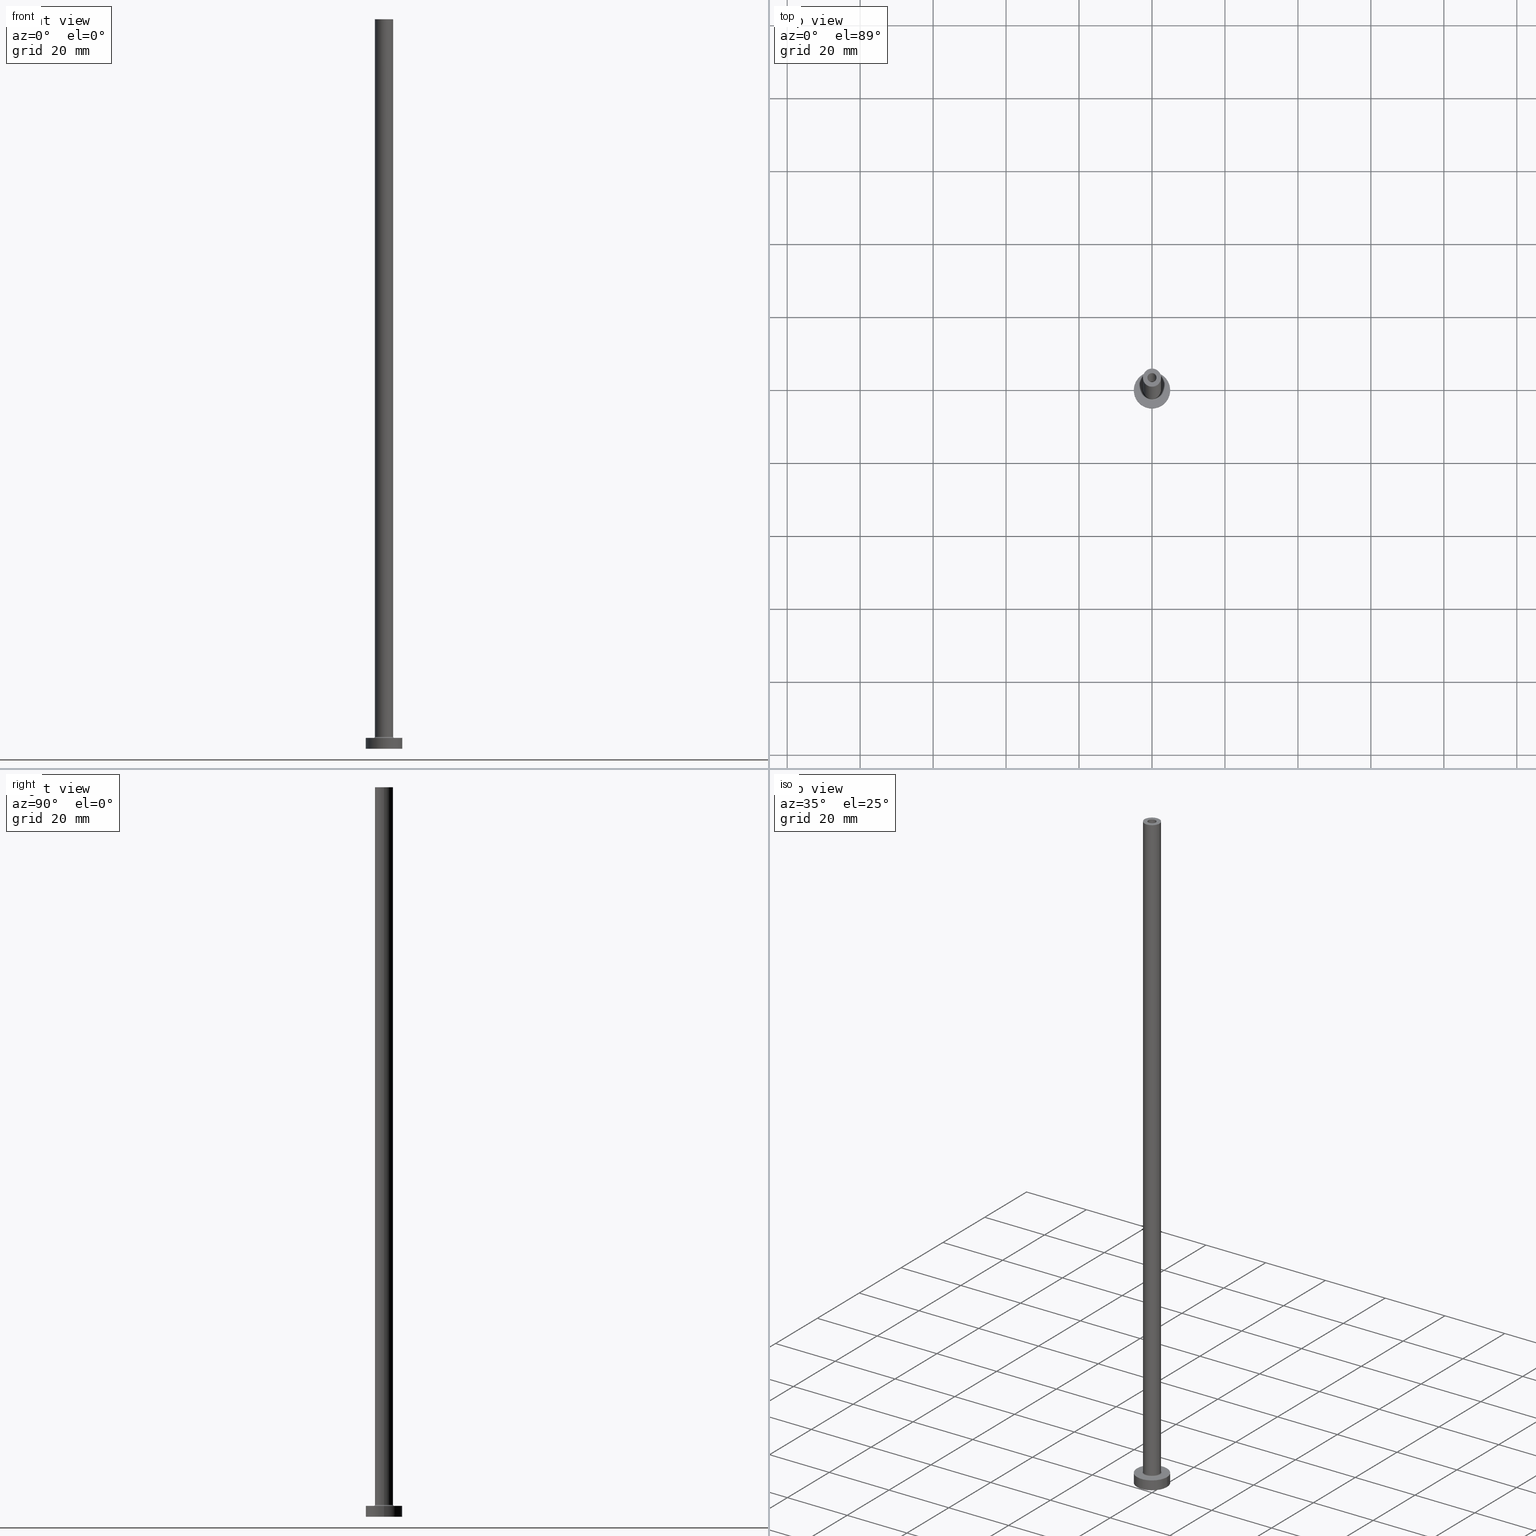
[diagram: canonical four-view strip — front | top / right | iso, engineering-drawing reading convention]
A machine part, canonical four-view strip (front | top / right | iso — engineering-drawing reading convention). The complete STEP part file that produces these views, byte-faithful:
ISO-10303-21;
HEADER;
FILE_DESCRIPTION (( 'STEP AP203' ),
    '1' );
FILE_NAME ('331a.STEP',
    '2023-02-13T18:05:34',
    ( '' ),
    ( '' ),
    'SwSTEP 2.0',
    'SolidWorks 2019',
    '' );
FILE_SCHEMA (( 'CONFIG_CONTROL_DESIGN' ));
ENDSEC;

DATA;
#1 = AXIS2_PLACEMENT_3D ( 'NONE', #177, #43, #408 ) ;
#2 = DIRECTION ( 'NONE',  ( -1.000000000000000000, 1.224646799147353207E-16, 0.000000000000000000 ) ) ;
#3 = AXIS2_PLACEMENT_3D ( 'NONE', #390, #38, #357 ) ;
#4 = DIRECTION ( 'NONE',  ( -1.000000000000000000, 0.000000000000000000, 0.000000000000000000 ) ) ;
#5 = ORIENTED_EDGE ( 'NONE', *, *, #136, .F. ) ;
#6 = ORIENTED_EDGE ( 'NONE', *, *, #55, .F. ) ;
#7 = ADVANCED_FACE ( 'NONE', ( #234, #165 ), #94, .F. ) ;
#8 = LOCAL_TIME ( 19, 5, 34.00000000000000000, #237 ) ;
#9 = PRODUCT ( '331a', '331a', '', ( #304 ) ) ;
#10 = DIRECTION ( 'NONE',  ( 0.000000000000000000, 0.000000000000000000, 1.000000000000000000 ) ) ;
#11 = CYLINDRICAL_SURFACE ( 'NONE', #228, 1.399999999999999911 ) ;
#12 = DIRECTION ( 'NONE',  ( 1.000000000000000000, 0.000000000000000000, 0.000000000000000000 ) ) ;
#13 = ORIENTED_EDGE ( 'NONE', *, *, #380, .F. ) ;
#14 = AXIS2_PLACEMENT_3D ( 'NONE', #178, #324, #425 ) ;
#15 = CIRCLE ( 'NONE', #370, 2.799999999999999822 ) ;
#16 = VERTEX_POINT ( 'NONE', #195 ) ;
#17 = APPROVAL_ROLE ( '' ) ;
#18 = CARTESIAN_POINT ( 'NONE',  ( -2.500000000000000000, 0.000000000000000000, 3.299999999999997158 ) ) ;
#19 = EDGE_LOOP ( 'NONE', ( #354, #179 ) ) ;
#20 = EDGE_LOOP ( 'NONE', ( #404, #34 ) ) ;
#21 = LINE ( 'NONE', #453, #189 ) ;
#22 = AXIS2_PLACEMENT_3D ( 'NONE', #89, #24, #54 ) ;
#23 = VERTEX_POINT ( 'NONE', #448 ) ;
#24 = DIRECTION ( 'NONE',  ( 0.000000000000000000, 0.000000000000000000, 1.000000000000000000 ) ) ;
#25 = ORIENTED_EDGE ( 'NONE', *, *, #322, .T. ) ;
#26 = EDGE_CURVE ( 'NONE', #416, #356, #153, .T. ) ;
#27 = VECTOR ( 'NONE', #248, 1000.000000000000000 ) ;
#28 = FACE_BOUND ( 'NONE', #19, .T. ) ;
#29 = DIRECTION ( 'NONE',  ( -0.000000000000000000, -0.000000000000000000, -1.000000000000000000 ) ) ;
#30 = AXIS2_PLACEMENT_3D ( 'NONE', #396, #95, #355 ) ;
#31 = FACE_OUTER_BOUND ( 'NONE', #157, .T. ) ;
#32 = CARTESIAN_POINT ( 'NONE',  ( 2.500000000000000000, 3.061616997868383141E-16, 3.299999999999997158 ) ) ;
#33 = DIRECTION ( 'NONE',  ( 0.000000000000000000, 0.000000000000000000, -1.000000000000000000 ) ) ;
#34 = ORIENTED_EDGE ( 'NONE', *, *, #308, .T. ) ;
#35 = ORGANIZATION ( 'NEUR�EN�', 'NEUR�EN�', '' ) ;
#36 = FACE_BOUND ( 'NONE', #20, .T. ) ;
#37 = EDGE_CURVE ( 'NONE', #60, #173, #417, .T. ) ;
#38 = DIRECTION ( 'NONE',  ( -0.000000000000000000, -0.000000000000000000, -1.000000000000000000 ) ) ;
#39 = EDGE_CURVE ( 'NONE', #46, #414, #21, .T. ) ;
#40 = CARTESIAN_POINT ( 'NONE',  ( 0.000000000000000000, 0.000000000000000000, 3.000000000000000000 ) ) ;
#41 = CARTESIAN_POINT ( 'NONE',  ( -1.250000000000000000, 0.000000000000000000, 200.0000000000000000 ) ) ;
#42 = VECTOR ( 'NONE', #291, 1000.000000000000000 ) ;
#43 = DIRECTION ( 'NONE',  ( 0.000000000000000000, -1.000000000000000000, 0.000000000000000000 ) ) ;
#44 = CC_DESIGN_DATE_AND_TIME_ASSIGNMENT ( #59, #48, ( #365 ) ) ;
#45 = PERSON_AND_ORGANIZATION ( #326, #35 ) ;
#46 = VERTEX_POINT ( 'NONE', #129 ) ;
#47 = EDGE_CURVE ( 'NONE', #411, #254, #384, .T. ) ;
#48 = DATE_TIME_ROLE ( 'creation_date' ) ;
#49 = VERTEX_POINT ( 'NONE', #461 ) ;
#50 = EDGE_CURVE ( 'NONE', #23, #254, #429, .T. ) ;
#51 = PERSON_AND_ORGANIZATION_ROLE ( 'creator' ) ;
#52 = CARTESIAN_POINT ( 'NONE',  ( 0.000000000000000000, 0.000000000000000000, 0.000000000000000000 ) ) ;
#53 = CIRCLE ( 'NONE', #92, 0.2999999999999999334 ) ;
#54 = DIRECTION ( 'NONE',  ( 1.000000000000000000, 0.000000000000000000, 0.000000000000000000 ) ) ;
#55 = EDGE_CURVE ( 'NONE', #298, #160, #245, .T. ) ;
#56 = CARTESIAN_POINT ( 'NONE',  ( 0.000000000000000000, 0.000000000000000000, 200.0000000000000000 ) ) ;
#57 = ORIENTED_EDGE ( 'NONE', *, *, #431, .T. ) ;
#58 = EDGE_CURVE ( 'NONE', #254, #411, #71, .T. ) ;
#59 = DATE_AND_TIME ( #203, #8 ) ;
#60 = VERTEX_POINT ( 'NONE', #81 ) ;
#61 = DIRECTION ( 'NONE',  ( -0.000000000000000000, -0.000000000000000000, -1.000000000000000000 ) ) ;
#62 = EDGE_CURVE ( 'NONE', #46, #298, #430, .T. ) ;
#63 = AXIS2_PLACEMENT_3D ( 'NONE', #445, #163, #313 ) ;
#64 = CARTESIAN_POINT ( 'NONE',  ( 0.000000000000000000, 0.000000000000000000, 3.000000000000000000 ) ) ;
#65 = DIRECTION ( 'NONE',  ( 1.000000000000000000, 0.000000000000000000, 0.000000000000000000 ) ) ;
#66 = DIRECTION ( 'NONE',  ( 0.000000000000000000, 0.000000000000000000, 1.000000000000000000 ) ) ;
#67 = PRODUCT_RELATED_PRODUCT_CATEGORY ( 'detail', '', ( #9 ) ) ;
#68 = EDGE_LOOP ( 'NONE', ( #332, #337, #86, #131 ) ) ;
#69 = ADVANCED_FACE ( 'NONE', ( #152 ), #180, .F. ) ;
#70 = CARTESIAN_POINT ( 'NONE',  ( 0.000000000000000000, 0.000000000000000000, 165.0000000000000000 ) ) ;
#71 = CIRCLE ( 'NONE', #455, 1.250000000000000000 ) ;
#72 = APPROVAL_DATE_TIME ( #255, #128 ) ;
#73 = ORIENTED_EDGE ( 'NONE', *, *, #459, .F. ) ;
#74 = AXIS2_PLACEMENT_3D ( 'NONE', #359, #244, #282 ) ;
#75 = CARTESIAN_POINT ( 'NONE',  ( 5.000000000000000000, 6.123233995736766282E-16, 0.000000000000000000 ) ) ;
#76 =( NAMED_UNIT ( * ) PLANE_ANGLE_UNIT ( ) SI_UNIT ( $, .RADIAN. ) );
#77 = ORIENTED_EDGE ( 'NONE', *, *, #322, .F. ) ;
#78 = LINE ( 'NONE', #80, #42 ) ;
#79 = PERSON_AND_ORGANIZATION_ROLE ( 'classification_officer' ) ;
#80 = CARTESIAN_POINT ( 'NONE',  ( -5.000000000000000000, 0.000000000000000000, 3.000000000000000000 ) ) ;
#81 = CARTESIAN_POINT ( 'NONE',  ( -5.000000000000000000, 0.000000000000000000, 0.000000000000000000 ) ) ;
#82 = EDGE_LOOP ( 'NONE', ( #238, #73, #109, #127 ) ) ;
#83 = APPROVAL_PERSON_ORGANIZATION ( #297, #128, #218 ) ;
#84 = DIRECTION ( 'NONE',  ( 1.000000000000000000, 0.000000000000000000, 0.000000000000000000 ) ) ;
#85 = EDGE_CURVE ( 'NONE', #145, #215, #348, .T. ) ;
#86 = ORIENTED_EDGE ( 'NONE', *, *, #288, .T. ) ;
#87 = DIRECTION ( 'NONE',  ( 1.000000000000000000, 0.000000000000000000, 0.000000000000000000 ) ) ;
#88 = EDGE_LOOP ( 'NONE', ( #190, #328 ) ) ;
#89 = CARTESIAN_POINT ( 'NONE',  ( 0.000000000000000000, 0.000000000000000000, 200.0000000000000000 ) ) ;
#90 = CARTESIAN_POINT ( 'NONE',  ( 0.000000000000000000, 0.000000000000000000, 165.0000000000000000 ) ) ;
#91 = EDGE_LOOP ( 'NONE', ( #336, #329 ) ) ;
#92 = AXIS2_PLACEMENT_3D ( 'NONE', #205, #352, #2 ) ;
#93 = CYLINDRICAL_SURFACE ( 'NONE', #3, 2.500000000000000000 ) ;
#94 = PLANE ( 'NONE',  #97 ) ;
#95 = DIRECTION ( 'NONE',  ( 0.000000000000000000, 0.000000000000000000, 1.000000000000000000 ) ) ;
#96 = UNCERTAINTY_MEASURE_WITH_UNIT (LENGTH_MEASURE( 1.000000000000000082E-05 ), #135, 'distance_accuracy_value', 'NONE');
#97 = AXIS2_PLACEMENT_3D ( 'NONE', #265, #316, #307 ) ;
#98 = CARTESIAN_POINT ( 'NONE',  ( -1.250000000000000000, 0.000000000000000000, 165.0000000000000000 ) ) ;
#99 = CARTESIAN_POINT ( 'NONE',  ( 1.250000000000000000, 1.530808498934191571E-16, 200.0000000000000000 ) ) ;
#100 = AXIS2_PLACEMENT_3D ( 'NONE', #90, #347, #194 ) ;
#101 = DIRECTION ( 'NONE',  ( 1.000000000000000000, 0.000000000000000000, 0.000000000000000000 ) ) ;
#102 = VERTEX_POINT ( 'NONE', #388 ) ;
#103 = APPROVAL ( #121, 'NEUR�EN�' ) ;
#104 = DIRECTION ( 'NONE',  ( 0.000000000000000000, 0.000000000000000000, 1.000000000000000000 ) ) ;
#105 = AXIS2_PLACEMENT_3D ( 'NONE', #119, #412, #84 ) ;
#106 = DIRECTION ( 'NONE',  ( 1.000000000000000000, 0.000000000000000000, 0.000000000000000000 ) ) ;
#107 = EDGE_LOOP ( 'NONE', ( #13, #385 ) ) ;
#108 = CALENDAR_DATE ( 2023, 13, 2 ) ;
#109 = ORIENTED_EDGE ( 'NONE', *, *, #231, .T. ) ;
#110 = EDGE_CURVE ( 'NONE', #160, #215, #53, .T. ) ;
#111 = APPLICATION_CONTEXT ( 'configuration controlled 3d designs of mechanical parts and assemblies' ) ;
#112 = AXIS2_PLACEMENT_3D ( 'NONE', #363, #137, #65 ) ;
#113 = SECURITY_CLASSIFICATION_LEVEL ( 'unclassified' ) ;
#114 = CARTESIAN_POINT ( 'NONE',  ( 2.799999999999999822, 0.000000000000000000, 2.999999999999998668 ) ) ;
#115 = ORIENTED_EDGE ( 'NONE', *, *, #47, .F. ) ;
#116 = FACE_OUTER_BOUND ( 'NONE', #208, .T. ) ;
#117 = ADVANCED_FACE ( 'NONE', ( #36, #394 ), #210, .T. ) ;
#118 = CARTESIAN_POINT ( 'NONE',  ( 0.000000000000000000, 0.000000000000000000, 3.299999999999997158 ) ) ;
#119 = CARTESIAN_POINT ( 'NONE',  ( 0.000000000000000000, 0.000000000000000000, 0.000000000000000000 ) ) ;
#120 = AXIS2_PLACEMENT_3D ( 'NONE', #52, #197, #349 ) ;
#121 = APPROVAL_STATUS ( 'not_yet_approved' ) ;
#122 = PLANE ( 'NONE',  #449 ) ;
#123 = AXIS2_PLACEMENT_3D ( 'NONE', #56, #309, #200 ) ;
#124 = ORIENTED_EDGE ( 'NONE', *, *, #247, .T. ) ;
#125 = PRODUCT_DEFINITION_FORMATION_WITH_SPECIFIED_SOURCE ( 'LIBOVOLN�', '', #9, .NOT_KNOWN. ) ;
#126 = LINE ( 'NONE', #172, #170 ) ;
#127 = ORIENTED_EDGE ( 'NONE', *, *, #308, .F. ) ;
#128 = APPROVAL ( #410, 'NEUR�EN�' ) ;
#129 = CARTESIAN_POINT ( 'NONE',  ( 2.500000000000000000, 3.061616997868383141E-16, 200.0000000000000000 ) ) ;
#130 = CYLINDRICAL_SURFACE ( 'NONE', #259, 1.250000000000000000 ) ;
#131 = ORIENTED_EDGE ( 'NONE', *, *, #37, .T. ) ;
#132 = LOCAL_TIME ( 19, 5, 34.00000000000000000, #344 ) ;
#133 = EDGE_CURVE ( 'NONE', #49, #16, #325, .T. ) ;
#134 = PLANE ( 'NONE',  #293 ) ;
#135 =( LENGTH_UNIT ( ) NAMED_UNIT ( * ) SI_UNIT ( .MILLI., .METRE. ) );
#136 = EDGE_CURVE ( 'NONE', #298, #46, #175, .T. ) ;
#137 = DIRECTION ( 'NONE',  ( 0.000000000000000000, 0.000000000000000000, 1.000000000000000000 ) ) ;
#138 = ORIENTED_EDGE ( 'NONE', *, *, #221, .T. ) ;
#139 = AXIS2_PLACEMENT_3D ( 'NONE', #367, #327, #432 ) ;
#140 = ORIENTED_EDGE ( 'NONE', *, *, #62, .T. ) ;
#141 = ADVANCED_FACE ( 'NONE', ( #161, #116 ), #122, .T. ) ;
#142 = AXIS2_PLACEMENT_3D ( 'NONE', #392, #61, #211 ) ;
#143 = DIRECTION ( 'NONE',  ( 0.000000000000000000, 0.000000000000000000, 1.000000000000000000 ) ) ;
#144 = ADVANCED_FACE ( 'NONE', ( #232 ), #199, .T. ) ;
#145 = VERTEX_POINT ( 'NONE', #114 ) ;
#146 = ORIENTED_EDGE ( 'NONE', *, *, #169, .T. ) ;
#147 = DIRECTION ( 'NONE',  ( 0.000000000000000000, 0.000000000000000000, -1.000000000000000000 ) ) ;
#148 = CIRCLE ( 'NONE', #386, 2.500000000000000000 ) ;
#149 = PERSON_AND_ORGANIZATION_ROLE ( 'design_owner' ) ;
#150 = EDGE_LOOP ( 'NONE', ( #287, #186, #399, #6 ) ) ;
#151 = SHAPE_DEFINITION_REPRESENTATION ( #289, #343 ) ;
#152 = FACE_OUTER_BOUND ( 'NONE', #256, .T. ) ;
#153 = CIRCLE ( 'NONE', #105, 1.399999999999999911 ) ;
#154 = CARTESIAN_POINT ( 'NONE',  ( 0.000000000000000000, 0.000000000000000000, 0.000000000000000000 ) ) ;
#155 = VECTOR ( 'NONE', #403, 1000.000000000000000 ) ;
#156 = LOCAL_TIME ( 19, 5, 34.00000000000000000, #306 ) ;
#157 = EDGE_LOOP ( 'NONE', ( #366, #5, #305, #446 ) ) ;
#158 = ADVANCED_FACE ( 'NONE', ( #261 ), #227, .F. ) ;
#159 = CARTESIAN_POINT ( 'NONE',  ( 0.000000000000000000, 0.000000000000000000, 168.9597979746446867 ) ) ;
#160 = VERTEX_POINT ( 'NONE', #18 ) ;
#161 = FACE_BOUND ( 'NONE', #107, .T. ) ;
#162 = MANIFOLD_SOLID_BREP ( 'Odebrat vysunut�m4', #236 ) ;
#163 = DIRECTION ( 'NONE',  ( -0.000000000000000000, -0.000000000000000000, -1.000000000000000000 ) ) ;
#164 = CALENDAR_DATE ( 2023, 13, 2 ) ;
#165 = FACE_OUTER_BOUND ( 'NONE', #361, .T. ) ;
#166 = AXIS2_PLACEMENT_3D ( 'NONE', #373, #334, #12 ) ;
#167 = DIRECTION ( 'NONE',  ( -0.000000000000000000, -0.000000000000000000, -1.000000000000000000 ) ) ;
#168 = APPLICATION_CONTEXT ( 'configuration controlled 3d designs of mechanical parts and assemblies' ) ;
#169 = EDGE_CURVE ( 'NONE', #283, #356, #253, .T. ) ;
#170 = VECTOR ( 'NONE', #272, 1000.000000000000000 ) ;
#171 = DIRECTION ( 'NONE',  ( -0.000000000000000000, -0.000000000000000000, -1.000000000000000000 ) ) ;
#172 = CARTESIAN_POINT ( 'NONE',  ( -1.250000000000000000, 0.000000000000000000, 200.0000000000000000 ) ) ;
#173 = VERTEX_POINT ( 'NONE', #75 ) ;
#174 = FACE_OUTER_BOUND ( 'NONE', #91, .T. ) ;
#175 = CIRCLE ( 'NONE', #22, 2.500000000000000000 ) ;
#176 = LINE ( 'NONE', #323, #457 ) ;
#177 = CARTESIAN_POINT ( 'NONE',  ( 2.799999999999999822, 0.000000000000000000, 3.299999999999997158 ) ) ;
#178 = CARTESIAN_POINT ( 'NONE',  ( 0.000000000000000000, 0.000000000000000000, 165.0000000000000000 ) ) ;
#179 = ORIENTED_EDGE ( 'NONE', *, *, #58, .T. ) ;
#180 = CYLINDRICAL_SURFACE ( 'NONE', #139, 1.250000000000000000 ) ;
#181 = CARTESIAN_POINT ( 'NONE',  ( 0.000000000000000000, 0.000000000000000000, 0.000000000000000000 ) ) ;
#182 = AXIS2_PLACEMENT_3D ( 'NONE', #64, #143, #286 ) ;
#183 = ADVANCED_FACE ( 'NONE', ( #335 ), #241, .T. ) ;
#184 = CARTESIAN_POINT ( 'NONE',  ( -2.500000000000000000, 0.000000000000000000, 200.0000000000000000 ) ) ;
#185 = DIRECTION ( 'NONE',  ( 1.000000000000000000, 0.000000000000000000, 0.000000000000000000 ) ) ;
#186 = ORIENTED_EDGE ( 'NONE', *, *, #39, .T. ) ;
#187 = DATE_AND_TIME ( #371, #156 ) ;
#188 = DIRECTION ( 'NONE',  ( 1.000000000000000000, 0.000000000000000000, 0.000000000000000000 ) ) ;
#189 = VECTOR ( 'NONE', #171, 1000.000000000000000 ) ;
#190 = ORIENTED_EDGE ( 'NONE', *, *, #26, .F. ) ;
#191 = CC_DESIGN_PERSON_AND_ORGANIZATION_ASSIGNMENT ( #271, #79, ( #378 ) ) ;
#192 = DATE_TIME_ROLE ( 'classification_date' ) ;
#193 = DIRECTION ( 'NONE',  ( -1.000000000000000000, 0.000000000000000000, 0.000000000000000000 ) ) ;
#194 = DIRECTION ( 'NONE',  ( 1.000000000000000000, 0.000000000000000000, 0.000000000000000000 ) ) ;
#195 = CARTESIAN_POINT ( 'NONE',  ( 5.000000000000000000, 6.123233995736766282E-16, 3.000000000000000000 ) ) ;
#196 = COORDINATED_UNIVERSAL_TIME_OFFSET ( 1, 0, .AHEAD. ) ;
#197 = DIRECTION ( 'NONE',  ( 0.000000000000000000, 0.000000000000000000, 1.000000000000000000 ) ) ;
#198 = AXIS2_PLACEMENT_3D ( 'NONE', #295, #407, #106 ) ;
#199 = CYLINDRICAL_SURFACE ( 'NONE', #201, 5.000000000000000000 ) ;
#200 = DIRECTION ( 'NONE',  ( 1.000000000000000000, 0.000000000000000000, 0.000000000000000000 ) ) ;
#201 = AXIS2_PLACEMENT_3D ( 'NONE', #452, #351, #275 ) ;
#202 = VECTOR ( 'NONE', #33, 1000.000000000000000 ) ;
#203 = CALENDAR_DATE ( 2023, 13, 2 ) ;
#204 = ORIENTED_EDGE ( 'NONE', *, *, #50, .F. ) ;
#205 = CARTESIAN_POINT ( 'NONE',  ( -2.799999999999999822, 3.429011037612588783E-16, 3.299999999999997158 ) ) ;
#206 = PERSON_AND_ORGANIZATION ( #326, #35 ) ;
#207 = ORIENTED_EDGE ( 'NONE', *, *, #50, .T. ) ;
#208 = EDGE_LOOP ( 'NONE', ( #301, #140 ) ) ;
#209 = ADVANCED_FACE ( 'NONE', ( #418 ), #330, .F. ) ;
#210 = PLANE ( 'NONE',  #182 ) ;
#211 = DIRECTION ( 'NONE',  ( -1.000000000000000000, 0.000000000000000000, 0.000000000000000000 ) ) ;
#212 = ORIENTED_EDGE ( 'NONE', *, *, #26, .T. ) ;
#213 = CARTESIAN_POINT ( 'NONE',  ( 0.000000000000000000, 0.000000000000000000, 165.0000000000000000 ) ) ;
#214 = CC_DESIGN_DATE_AND_TIME_ASSIGNMENT ( #226, #192, ( #378 ) ) ;
#215 = VERTEX_POINT ( 'NONE', #273 ) ;
#216 = AXIS2_PLACEMENT_3D ( 'NONE', #181, #443, #440 ) ;
#217 = CC_DESIGN_APPROVAL ( #103, ( #378 ) ) ;
#218 = APPROVAL_ROLE ( '' ) ;
#219 = DIRECTION ( 'NONE',  ( 0.000000000000000000, 0.000000000000000000, 1.000000000000000000 ) ) ;
#220 = DIRECTION ( 'NONE',  ( 0.000000000000000000, 0.000000000000000000, 1.000000000000000000 ) ) ;
#221 = EDGE_CURVE ( 'NONE', #23, #242, #377, .T. ) ;
#222 = PERSON_AND_ORGANIZATION ( #326, #35 ) ;
#223 = CIRCLE ( 'NONE', #74, 1.250000000000000000 ) ;
#224 =( NAMED_UNIT ( * ) SI_UNIT ( $, .STERADIAN. ) SOLID_ANGLE_UNIT ( ) );
#225 = ADVANCED_FACE ( 'NONE', ( #353 ), #93, .T. ) ;
#226 = DATE_AND_TIME ( #346, #434 ) ;
#227 = CYLINDRICAL_SURFACE ( 'NONE', #433, 1.399999999999999911 ) ;
#228 = AXIS2_PLACEMENT_3D ( 'NONE', #374, #294, #262 ) ;
#229 = CC_DESIGN_SECURITY_CLASSIFICATION ( #378, ( #125 ) ) ;
#230 = ORIENTED_EDGE ( 'NONE', *, *, #247, .F. ) ;
#231 = EDGE_CURVE ( 'NONE', #414, #145, #401, .T. ) ;
#232 = FACE_OUTER_BOUND ( 'NONE', #274, .T. ) ;
#233 = APPROVAL_DATE_TIME ( #447, #342 ) ;
#234 = FACE_BOUND ( 'NONE', #88, .T. ) ;
#235 = DIRECTION ( 'NONE',  ( 1.000000000000000000, 0.000000000000000000, 0.000000000000000000 ) ) ;
#236 = CLOSED_SHELL ( 'NONE', ( #69, #249, #296, #225, #144, #183, #117, #7, #406, #141, #209, #158, #393, #338 ) ) ;
#237 = COORDINATED_UNIVERSAL_TIME_OFFSET ( 1, 0, .AHEAD. ) ;
#238 = ORIENTED_EDGE ( 'NONE', *, *, #110, .F. ) ;
#239 =( GEOMETRIC_REPRESENTATION_CONTEXT ( 3 ) GLOBAL_UNCERTAINTY_ASSIGNED_CONTEXT ( ( #96 ) ) GLOBAL_UNIT_ASSIGNED_CONTEXT ( ( #135, #76, #224 ) ) REPRESENTATION_CONTEXT ( 'NONE', 'WORKASPACE' ) );
#240 = ORIENTED_EDGE ( 'NONE', *, *, #85, .F. ) ;
#241 = CYLINDRICAL_SURFACE ( 'NONE', #63, 5.000000000000000000 ) ;
#242 = VERTEX_POINT ( 'NONE', #41 ) ;
#243 = DIRECTION ( 'NONE',  ( 0.000000000000000000, 0.000000000000000000, 1.000000000000000000 ) ) ;
#244 = DIRECTION ( 'NONE',  ( 0.000000000000000000, 0.000000000000000000, 1.000000000000000000 ) ) ;
#245 = LINE ( 'NONE', #397, #290 ) ;
#246 = CIRCLE ( 'NONE', #216, 5.000000000000000000 ) ;
#247 = EDGE_CURVE ( 'NONE', #173, #60, #246, .T. ) ;
#248 = DIRECTION ( 'NONE',  ( 0.000000000000000000, 0.000000000000000000, -1.000000000000000000 ) ) ;
#249 = ADVANCED_FACE ( 'NONE', ( #438 ), #11, .F. ) ;
#250 = CARTESIAN_POINT ( 'NONE',  ( 0.000000000000000000, 0.000000000000000000, 0.000000000000000000 ) ) ;
#251 = AXIS2_PLACEMENT_3D ( 'NONE', #250, #29, #101 ) ;
#252 = FACE_OUTER_BOUND ( 'NONE', #451, .T. ) ;
#253 = LINE ( 'NONE', #300, #155 ) ;
#254 = VERTEX_POINT ( 'NONE', #260 ) ;
#255 = DATE_AND_TIME ( #108, #303 ) ;
#256 = EDGE_LOOP ( 'NONE', ( #369, #207, #115, #77 ) ) ;
#257 = CARTESIAN_POINT ( 'NONE',  ( 1.399999999999999911, 1.714505518806294391E-16, 165.0000000000000000 ) ) ;
#258 = ORIENTED_EDGE ( 'NONE', *, *, #409, .T. ) ;
#259 = AXIS2_PLACEMENT_3D ( 'NONE', #277, #147, #4 ) ;
#260 = CARTESIAN_POINT ( 'NONE',  ( 1.250000000000000000, 1.530808498934191571E-16, 165.0000000000000000 ) ) ;
#261 = FACE_OUTER_BOUND ( 'NONE', #310, .T. ) ;
#262 = DIRECTION ( 'NONE',  ( -1.000000000000000000, 0.000000000000000000, 0.000000000000000000 ) ) ;
#263 = DIRECTION ( 'NONE',  ( 1.000000000000000000, 0.000000000000000000, -0.000000000000000000 ) ) ;
#264 = APPROVAL_ROLE ( '' ) ;
#265 = CARTESIAN_POINT ( 'NONE',  ( 0.000000000000000000, 0.000000000000000000, 0.000000000000000000 ) ) ;
#266 = DIRECTION ( 'NONE',  ( 0.000000000000000000, 0.000000000000000000, 1.000000000000000000 ) ) ;
#267 = CARTESIAN_POINT ( 'NONE',  ( 0.000000000000000000, 0.000000000000000000, 3.000000000000000000 ) ) ;
#268 = AXIS2_PLACEMENT_3D ( 'NONE', #40, #104, #400 ) ;
#269 = ORIENTED_EDGE ( 'NONE', *, *, #133, .T. ) ;
#270 = CC_DESIGN_PERSON_AND_ORGANIZATION_ASSIGNMENT ( #314, #302, ( #125 ) ) ;
#271 = PERSON_AND_ORGANIZATION ( #326, #35 ) ;
#272 = DIRECTION ( 'NONE',  ( 0.000000000000000000, 0.000000000000000000, -1.000000000000000000 ) ) ;
#273 = CARTESIAN_POINT ( 'NONE',  ( -2.799999999999999822, 3.429011037612589276E-16, 2.999999999999998668 ) ) ;
#274 = EDGE_LOOP ( 'NONE', ( #427, #258, #124, #382 ) ) ;
#275 = DIRECTION ( 'NONE',  ( -1.000000000000000000, 0.000000000000000000, 0.000000000000000000 ) ) ;
#276 = ORIENTED_EDGE ( 'NONE', *, *, #368, .T. ) ;
#277 = CARTESIAN_POINT ( 'NONE',  ( 0.000000000000000000, 0.000000000000000000, 200.0000000000000000 ) ) ;
#278 = CC_DESIGN_PERSON_AND_ORGANIZATION_ASSIGNMENT ( #45, #149, ( #9 ) ) ;
#279 = CIRCLE ( 'NONE', #441, 2.500000000000000000 ) ;
#280 = ORIENTED_EDGE ( 'NONE', *, *, #37, .F. ) ;
#281 = DIRECTION ( 'NONE',  ( 1.000000000000000000, 0.000000000000000000, -0.000000000000000000 ) ) ;
#282 = DIRECTION ( 'NONE',  ( 1.000000000000000000, 0.000000000000000000, 0.000000000000000000 ) ) ;
#283 = VERTEX_POINT ( 'NONE', #257 ) ;
#284 = TOROIDAL_SURFACE ( 'NONE', #395, 2.799999999999999822, 0.2999999999999999889 ) ;
#285 = ORIENTED_EDGE ( 'NONE', *, *, #231, .F. ) ;
#286 = DIRECTION ( 'NONE',  ( 1.000000000000000000, 0.000000000000000000, -0.000000000000000000 ) ) ;
#287 = ORIENTED_EDGE ( 'NONE', *, *, #62, .F. ) ;
#288 = EDGE_CURVE ( 'NONE', #49, #60, #78, .T. ) ;
#289 = PRODUCT_DEFINITION_SHAPE ( 'NONE', 'NONE',  #365 ) ;
#290 = VECTOR ( 'NONE', #364, 1000.000000000000000 ) ;
#291 = DIRECTION ( 'NONE',  ( -0.000000000000000000, -0.000000000000000000, -1.000000000000000000 ) ) ;
#292 = ORIENTED_EDGE ( 'NONE', *, *, #317, .F. ) ;
#293 = AXIS2_PLACEMENT_3D ( 'NONE', #213, #243, #281 ) ;
#294 = DIRECTION ( 'NONE',  ( 0.000000000000000000, 0.000000000000000000, -1.000000000000000000 ) ) ;
#295 = CARTESIAN_POINT ( 'NONE',  ( 0.000000000000000000, 0.000000000000000000, 3.000000000000000000 ) ) ;
#296 = ADVANCED_FACE ( 'NONE', ( #252 ), #284, .F. ) ;
#297 = PERSON_AND_ORGANIZATION ( #326, #35 ) ;
#298 = VERTEX_POINT ( 'NONE', #184 ) ;
#299 = EDGE_CURVE ( 'NONE', #283, #102, #312, .T. ) ;
#300 = CARTESIAN_POINT ( 'NONE',  ( 1.399999999999999911, 1.714505518806294391E-16, 168.9597979746446867 ) ) ;
#301 = ORIENTED_EDGE ( 'NONE', *, *, #136, .T. ) ;
#302 = PERSON_AND_ORGANIZATION_ROLE ( 'design_supplier' ) ;
#303 = LOCAL_TIME ( 19, 5, 34.00000000000000000, #437 ) ;
#304 = MECHANICAL_CONTEXT ( 'NONE', #111, 'mechanical' ) ;
#305 = ORIENTED_EDGE ( 'NONE', *, *, #55, .T. ) ;
#306 = COORDINATED_UNIVERSAL_TIME_OFFSET ( 1, 0, .AHEAD. ) ;
#307 = DIRECTION ( 'NONE',  ( 1.000000000000000000, 0.000000000000000000, -0.000000000000000000 ) ) ;
#308 = EDGE_CURVE ( 'NONE', #215, #145, #15, .T. ) ;
#309 = DIRECTION ( 'NONE',  ( 0.000000000000000000, 0.000000000000000000, 1.000000000000000000 ) ) ;
#310 = EDGE_LOOP ( 'NONE', ( #318, #456, #379, #212 ) ) ;
#311 = CARTESIAN_POINT ( 'NONE',  ( 0.000000000000000000, 0.000000000000000000, 3.299999999999997158 ) ) ;
#312 = CIRCLE ( 'NONE', #100, 1.399999999999999911 ) ;
#313 = DIRECTION ( 'NONE',  ( -1.000000000000000000, 0.000000000000000000, 0.000000000000000000 ) ) ;
#314 = PERSON_AND_ORGANIZATION ( #326, #35 ) ;
#315 = ORIENTED_EDGE ( 'NONE', *, *, #362, .T. ) ;
#316 = DIRECTION ( 'NONE',  ( 0.000000000000000000, 0.000000000000000000, 1.000000000000000000 ) ) ;
#317 = EDGE_CURVE ( 'NONE', #160, #414, #279, .T. ) ;
#318 = ORIENTED_EDGE ( 'NONE', *, *, #169, .F. ) ;
#319 = AXIS2_PLACEMENT_3D ( 'NONE', #154, #220, #185 ) ;
#320 = APPROVAL_PERSON_ORGANIZATION ( #339, #103, #17 ) ;
#321 = CARTESIAN_POINT ( 'NONE',  ( 0.000000000000000000, 0.000000000000000000, 3.299999999999997158 ) ) ;
#322 = EDGE_CURVE ( 'NONE', #242, #411, #126, .T. ) ;
#323 = CARTESIAN_POINT ( 'NONE',  ( 5.000000000000000000, 6.123233995736766282E-16, 3.000000000000000000 ) ) ;
#324 = DIRECTION ( 'NONE',  ( 0.000000000000000000, 0.000000000000000000, 1.000000000000000000 ) ) ;
#325 = CIRCLE ( 'NONE', #268, 5.000000000000000000 ) ;
#326 = PERSON ( 'NEUR�EN�', 'NEUR�EN�', 'NEUR�EN�', ('NEUR�EN�'), ('NEUR�EN�'), ('NEUR�EN�') ) ;
#327 = DIRECTION ( 'NONE',  ( 0.000000000000000000, 0.000000000000000000, -1.000000000000000000 ) ) ;
#328 = ORIENTED_EDGE ( 'NONE', *, *, #431, .F. ) ;
#329 = ORIENTED_EDGE ( 'NONE', *, *, #299, .F. ) ;
#330 = TOROIDAL_SURFACE ( 'NONE', #405, 2.799999999999999822, 0.2999999999999999889 ) ;
#331 = DIRECTION ( 'NONE',  ( 1.000000000000000000, 0.000000000000000000, 0.000000000000000000 ) ) ;
#332 = ORIENTED_EDGE ( 'NONE', *, *, #409, .F. ) ;
#333 = APPROVAL_DATE_TIME ( #187, #103 ) ;
#334 = DIRECTION ( 'NONE',  ( 0.000000000000000000, 0.000000000000000000, 1.000000000000000000 ) ) ;
#335 = FACE_OUTER_BOUND ( 'NONE', #68, .T. ) ;
#336 = ORIENTED_EDGE ( 'NONE', *, *, #362, .F. ) ;
#337 = ORIENTED_EDGE ( 'NONE', *, *, #133, .F. ) ;
#338 = ADVANCED_FACE ( 'NONE', ( #454 ), #130, .F. ) ;
#339 = PERSON_AND_ORGANIZATION ( #326, #35 ) ;
#340 = CIRCLE ( 'NONE', #30, 5.000000000000000000 ) ;
#341 = APPROVAL_STATUS ( 'not_yet_approved' ) ;
#342 = APPROVAL ( #341, 'NEUR�EN�' ) ;
#343 = ADVANCED_BREP_SHAPE_REPRESENTATION ( '331a', ( #162, #319 ), #239 ) ;
#344 = COORDINATED_UNIVERSAL_TIME_OFFSET ( 1, 0, .AHEAD. ) ;
#345 = ORIENTED_EDGE ( 'NONE', *, *, #110, .T. ) ;
#346 = CALENDAR_DATE ( 2023, 13, 2 ) ;
#347 = DIRECTION ( 'NONE',  ( 0.000000000000000000, 0.000000000000000000, 1.000000000000000000 ) ) ;
#348 = CIRCLE ( 'NONE', #198, 2.799999999999999822 ) ;
#349 = DIRECTION ( 'NONE',  ( 1.000000000000000000, 0.000000000000000000, 0.000000000000000000 ) ) ;
#350 = CIRCLE ( 'NONE', #251, 1.399999999999999911 ) ;
#351 = DIRECTION ( 'NONE',  ( -0.000000000000000000, -0.000000000000000000, -1.000000000000000000 ) ) ;
#352 = DIRECTION ( 'NONE',  ( 1.224646799147353207E-16, 1.000000000000000000, -0.000000000000000000 ) ) ;
#353 = FACE_OUTER_BOUND ( 'NONE', #150, .T. ) ;
#354 = ORIENTED_EDGE ( 'NONE', *, *, #47, .T. ) ;
#355 = DIRECTION ( 'NONE',  ( 1.000000000000000000, 0.000000000000000000, 0.000000000000000000 ) ) ;
#356 = VERTEX_POINT ( 'NONE', #424 ) ;
#357 = DIRECTION ( 'NONE',  ( -1.000000000000000000, 0.000000000000000000, 0.000000000000000000 ) ) ;
#358 = CC_DESIGN_APPROVAL ( #128, ( #365 ) ) ;
#359 = CARTESIAN_POINT ( 'NONE',  ( 0.000000000000000000, 0.000000000000000000, 200.0000000000000000 ) ) ;
#360 = CARTESIAN_POINT ( 'NONE',  ( -1.399999999999999911, 0.000000000000000000, 168.9597979746446867 ) ) ;
#361 = EDGE_LOOP ( 'NONE', ( #280, #230 ) ) ;
#362 = EDGE_CURVE ( 'NONE', #102, #283, #426, .T. ) ;
#363 = CARTESIAN_POINT ( 'NONE',  ( 0.000000000000000000, 0.000000000000000000, 165.0000000000000000 ) ) ;
#364 = DIRECTION ( 'NONE',  ( -0.000000000000000000, -0.000000000000000000, -1.000000000000000000 ) ) ;
#365 = PRODUCT_DEFINITION ( 'NEZN�M�', '', #125, #376 ) ;
#366 = ORIENTED_EDGE ( 'NONE', *, *, #39, .F. ) ;
#367 = CARTESIAN_POINT ( 'NONE',  ( 0.000000000000000000, 0.000000000000000000, 200.0000000000000000 ) ) ;
#368 = EDGE_CURVE ( 'NONE', #16, #49, #340, .T. ) ;
#369 = ORIENTED_EDGE ( 'NONE', *, *, #380, .T. ) ;
#370 = AXIS2_PLACEMENT_3D ( 'NONE', #267, #167, #413 ) ;
#371 = CALENDAR_DATE ( 2023, 13, 2 ) ;
#372 = APPLICATION_PROTOCOL_DEFINITION ( 'international standard', 'config_control_design', 1994, #111 ) ;
#373 = CARTESIAN_POINT ( 'NONE',  ( 0.000000000000000000, 0.000000000000000000, 200.0000000000000000 ) ) ;
#374 = CARTESIAN_POINT ( 'NONE',  ( 0.000000000000000000, 0.000000000000000000, 168.9597979746446867 ) ) ;
#375 = PERSON_AND_ORGANIZATION_ROLE ( 'creator' ) ;
#376 = DESIGN_CONTEXT ( 'detailed design', #168, 'design' ) ;
#377 = CIRCLE ( 'NONE', #123, 1.250000000000000000 ) ;
#378 = SECURITY_CLASSIFICATION ( '', '', #113 ) ;
#379 = ORIENTED_EDGE ( 'NONE', *, *, #436, .T. ) ;
#380 = EDGE_CURVE ( 'NONE', #242, #23, #223, .T. ) ;
#381 = PERSON_AND_ORGANIZATION ( #326, #35 ) ;
#382 = ORIENTED_EDGE ( 'NONE', *, *, #288, .F. ) ;
#383 = CARTESIAN_POINT ( 'NONE',  ( 0.000000000000000000, 0.000000000000000000, 200.0000000000000000 ) ) ;
#384 = CIRCLE ( 'NONE', #14, 1.250000000000000000 ) ;
#385 = ORIENTED_EDGE ( 'NONE', *, *, #221, .F. ) ;
#386 = AXIS2_PLACEMENT_3D ( 'NONE', #321, #66, #458 ) ;
#387 = CC_DESIGN_APPROVAL ( #342, ( #125 ) ) ;
#388 = CARTESIAN_POINT ( 'NONE',  ( -1.399999999999999911, 0.000000000000000000, 165.0000000000000000 ) ) ;
#389 = EDGE_LOOP ( 'NONE', ( #315, #146, #57, #391 ) ) ;
#390 = CARTESIAN_POINT ( 'NONE',  ( 0.000000000000000000, 0.000000000000000000, 200.0000000000000000 ) ) ;
#391 = ORIENTED_EDGE ( 'NONE', *, *, #436, .F. ) ;
#392 = CARTESIAN_POINT ( 'NONE',  ( 0.000000000000000000, 0.000000000000000000, 200.0000000000000000 ) ) ;
#393 = ADVANCED_FACE ( 'NONE', ( #28, #174 ), #134, .F. ) ;
#394 = FACE_OUTER_BOUND ( 'NONE', #439, .T. ) ;
#395 = AXIS2_PLACEMENT_3D ( 'NONE', #402, #219, #331 ) ;
#396 = CARTESIAN_POINT ( 'NONE',  ( 0.000000000000000000, 0.000000000000000000, 3.000000000000000000 ) ) ;
#397 = CARTESIAN_POINT ( 'NONE',  ( -2.500000000000000000, 0.000000000000000000, 200.0000000000000000 ) ) ;
#398 = LINE ( 'NONE', #360, #202 ) ;
#399 = ORIENTED_EDGE ( 'NONE', *, *, #459, .T. ) ;
#400 = DIRECTION ( 'NONE',  ( 1.000000000000000000, 0.000000000000000000, 0.000000000000000000 ) ) ;
#401 = CIRCLE ( 'NONE', #1, 0.2999999999999999334 ) ;
#402 = CARTESIAN_POINT ( 'NONE',  ( 0.000000000000000000, 0.000000000000000000, 3.299999999999997158 ) ) ;
#403 = DIRECTION ( 'NONE',  ( 0.000000000000000000, 0.000000000000000000, -1.000000000000000000 ) ) ;
#404 = ORIENTED_EDGE ( 'NONE', *, *, #85, .T. ) ;
#405 = AXIS2_PLACEMENT_3D ( 'NONE', #118, #415, #87 ) ;
#406 = ADVANCED_FACE ( 'NONE', ( #31 ), #422, .T. ) ;
#407 = DIRECTION ( 'NONE',  ( -0.000000000000000000, -0.000000000000000000, -1.000000000000000000 ) ) ;
#408 = DIRECTION ( 'NONE',  ( 0.000000000000000000, 0.000000000000000000, -1.000000000000000000 ) ) ;
#409 = EDGE_CURVE ( 'NONE', #16, #173, #176, .T. ) ;
#410 = APPROVAL_STATUS ( 'not_yet_approved' ) ;
#411 = VERTEX_POINT ( 'NONE', #98 ) ;
#412 = DIRECTION ( 'NONE',  ( -0.000000000000000000, -0.000000000000000000, -1.000000000000000000 ) ) ;
#413 = DIRECTION ( 'NONE',  ( 1.000000000000000000, 0.000000000000000000, 0.000000000000000000 ) ) ;
#414 = VERTEX_POINT ( 'NONE', #32 ) ;
#415 = DIRECTION ( 'NONE',  ( 0.000000000000000000, 0.000000000000000000, 1.000000000000000000 ) ) ;
#416 = VERTEX_POINT ( 'NONE', #419 ) ;
#417 = CIRCLE ( 'NONE', #120, 5.000000000000000000 ) ;
#418 = FACE_OUTER_BOUND ( 'NONE', #82, .T. ) ;
#419 = CARTESIAN_POINT ( 'NONE',  ( -1.399999999999999911, 0.000000000000000000, 0.000000000000000000 ) ) ;
#420 = ORIENTED_EDGE ( 'NONE', *, *, #58, .F. ) ;
#421 = CC_DESIGN_PERSON_AND_ORGANIZATION_ASSIGNMENT ( #222, #375, ( #365 ) ) ;
#422 = CYLINDRICAL_SURFACE ( 'NONE', #142, 2.500000000000000000 ) ;
#423 = EDGE_LOOP ( 'NONE', ( #204, #138, #25, #420 ) ) ;
#424 = CARTESIAN_POINT ( 'NONE',  ( 1.399999999999999911, 1.714505518806294391E-16, 0.000000000000000000 ) ) ;
#425 = DIRECTION ( 'NONE',  ( 1.000000000000000000, 0.000000000000000000, 0.000000000000000000 ) ) ;
#426 = CIRCLE ( 'NONE', #112, 1.399999999999999911 ) ;
#427 = ORIENTED_EDGE ( 'NONE', *, *, #368, .F. ) ;
#428 = CC_DESIGN_PERSON_AND_ORGANIZATION_ASSIGNMENT ( #381, #51, ( #125 ) ) ;
#429 = LINE ( 'NONE', #99, #27 ) ;
#430 = CIRCLE ( 'NONE', #166, 2.500000000000000000 ) ;
#431 = EDGE_CURVE ( 'NONE', #356, #416, #350, .T. ) ;
#432 = DIRECTION ( 'NONE',  ( -1.000000000000000000, 0.000000000000000000, 0.000000000000000000 ) ) ;
#433 = AXIS2_PLACEMENT_3D ( 'NONE', #159, #435, #193 ) ;
#434 = LOCAL_TIME ( 19, 5, 34.00000000000000000, #196 ) ;
#435 = DIRECTION ( 'NONE',  ( 0.000000000000000000, 0.000000000000000000, -1.000000000000000000 ) ) ;
#436 = EDGE_CURVE ( 'NONE', #102, #416, #398, .T. ) ;
#437 = COORDINATED_UNIVERSAL_TIME_OFFSET ( 1, 0, .AHEAD. ) ;
#438 = FACE_OUTER_BOUND ( 'NONE', #389, .T. ) ;
#439 = EDGE_LOOP ( 'NONE', ( #269, #276 ) ) ;
#440 = DIRECTION ( 'NONE',  ( 1.000000000000000000, 0.000000000000000000, 0.000000000000000000 ) ) ;
#441 = AXIS2_PLACEMENT_3D ( 'NONE', #311, #450, #235 ) ;
#442 = APPROVAL_PERSON_ORGANIZATION ( #206, #342, #264 ) ;
#443 = DIRECTION ( 'NONE',  ( 0.000000000000000000, 0.000000000000000000, 1.000000000000000000 ) ) ;
#444 = APPLICATION_PROTOCOL_DEFINITION ( 'international standard', 'config_control_design', 1994, #168 ) ;
#445 = CARTESIAN_POINT ( 'NONE',  ( 0.000000000000000000, 0.000000000000000000, 3.000000000000000000 ) ) ;
#446 = ORIENTED_EDGE ( 'NONE', *, *, #317, .T. ) ;
#447 = DATE_AND_TIME ( #164, #132 ) ;
#448 = CARTESIAN_POINT ( 'NONE',  ( 1.250000000000000000, 1.530808498934191571E-16, 200.0000000000000000 ) ) ;
#449 = AXIS2_PLACEMENT_3D ( 'NONE', #383, #266, #263 ) ;
#450 = DIRECTION ( 'NONE',  ( 0.000000000000000000, 0.000000000000000000, 1.000000000000000000 ) ) ;
#451 = EDGE_LOOP ( 'NONE', ( #292, #345, #240, #285 ) ) ;
#452 = CARTESIAN_POINT ( 'NONE',  ( 0.000000000000000000, 0.000000000000000000, 3.000000000000000000 ) ) ;
#453 = CARTESIAN_POINT ( 'NONE',  ( 2.500000000000000000, 3.061616997868383141E-16, 200.0000000000000000 ) ) ;
#454 = FACE_OUTER_BOUND ( 'NONE', #423, .T. ) ;
#455 = AXIS2_PLACEMENT_3D ( 'NONE', #70, #10, #188 ) ;
#456 = ORIENTED_EDGE ( 'NONE', *, *, #299, .T. ) ;
#457 = VECTOR ( 'NONE', #460, 1000.000000000000000 ) ;
#458 = DIRECTION ( 'NONE',  ( 1.000000000000000000, 0.000000000000000000, 0.000000000000000000 ) ) ;
#459 = EDGE_CURVE ( 'NONE', #414, #160, #148, .T. ) ;
#460 = DIRECTION ( 'NONE',  ( -0.000000000000000000, -0.000000000000000000, -1.000000000000000000 ) ) ;
#461 = CARTESIAN_POINT ( 'NONE',  ( -5.000000000000000000, 0.000000000000000000, 3.000000000000000000 ) ) ;
ENDSEC;
END-ISO-10303-21;
